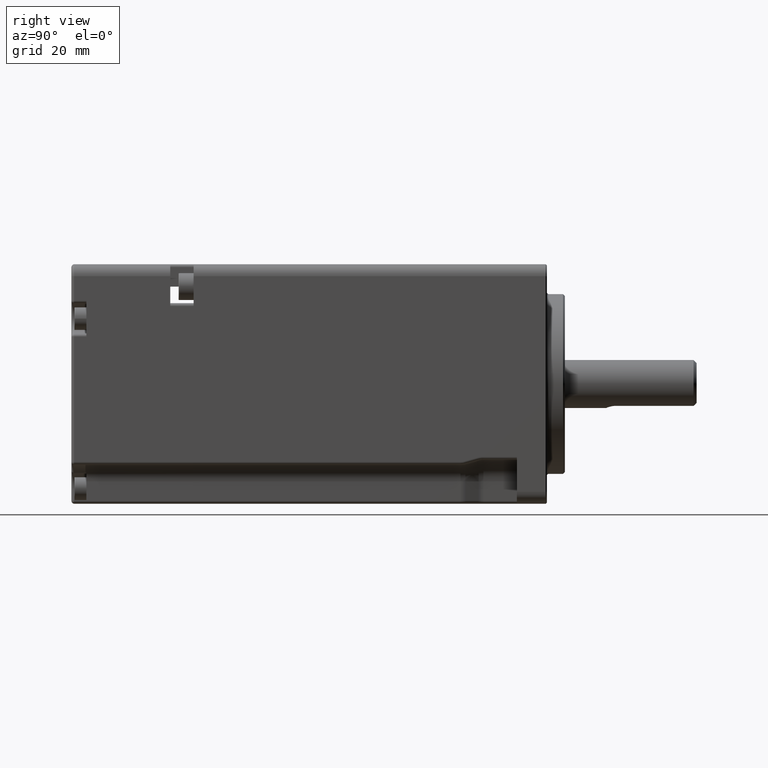
[diagram: clean part render]
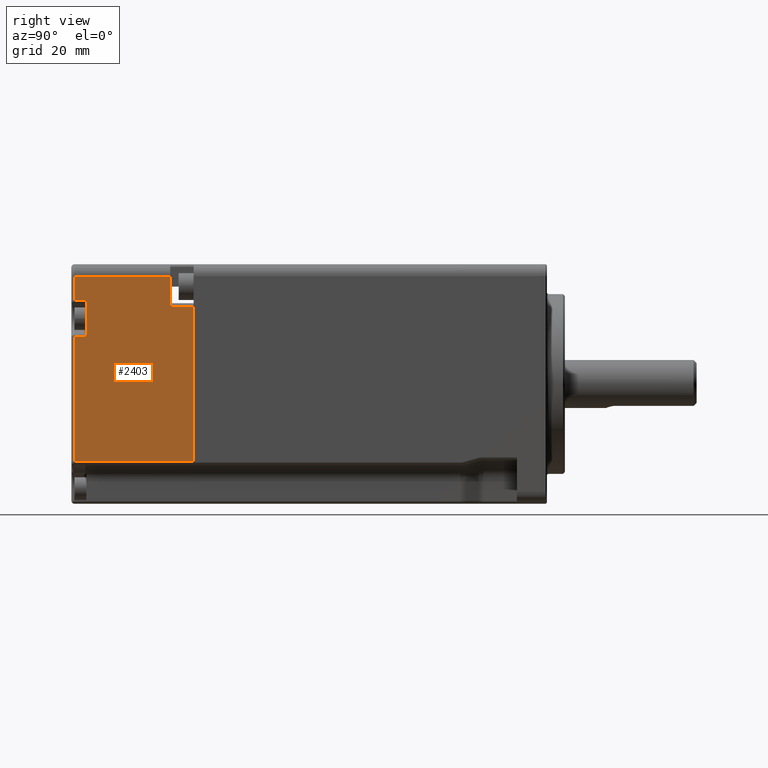
[diagram: same view with one face highlighted and labeled with its STEP entity id]
A machine part, right view. The second image highlights one B-rep face of the part: STEP entity #2403.
In plain terms, the highlighted planar face has unit normal (-1, 0, 0).
Its self-contained STEP definition (entity closure, byte-faithful):
#77 = CARTESIAN_POINT ( 'NONE',  ( 20.00000000000000000, -7.899999999999990585, 13.00345596729055941 ) ) ;
#172 = EDGE_CURVE ( 'NONE', #21234, #11008, #14090, .T. ) ;
#286 = CARTESIAN_POINT ( 'NONE',  ( 20.00000000000000000, -23.89999999999998792, 7.916336843203922946 ) ) ;
#691 = CARTESIAN_POINT ( 'NONE',  ( 20.00000000000000000, -3.999999999999989786, 13.00345596729055941 ) ) ;
#2097 = EDGE_CURVE ( 'NONE', #7168, #10479, #6922, .T. ) ;
#2346 = CARTESIAN_POINT ( 'NONE',  ( 20.00000000000000000, -4.499999999999990230, -13.00345596729059672 ) ) ;
#2364 = DIRECTION ( 'NONE',  ( -1.110223024625156294E-16, -2.092431894514492648E-18, -1.000000000000000000 ) ) ;
#2403 = ADVANCED_FACE ( 'NONE', ( #8553 ), #16298, .F. ) ;
#2835 = CARTESIAN_POINT ( 'NONE',  ( 20.00000000000000355, -7.899999999999990585, 20.00000000000000355 ) ) ;
#2880 = CARTESIAN_POINT ( 'NONE',  ( 20.00000000000000000, -4.499999999999990230, 13.50000000000000711 ) ) ;
#3043 = DIRECTION ( 'NONE',  ( -6.123233995736767268E-17, -1.000000000000000000, 2.092431894514851256E-18 ) ) ;
#3256 = AXIS2_PLACEMENT_3D ( 'NONE', #2880, #5085, #4821 ) ;
#3624 = CARTESIAN_POINT ( 'NONE',  ( 20.00000000000000000, -23.89999999999998792, -13.00345596729059672 ) ) ;
#3868 = CARTESIAN_POINT ( 'NONE',  ( 20.00000000000000000, -3.999999999999989786, -13.00345596729059672 ) ) ;
#4079 = CARTESIAN_POINT ( 'NONE',  ( 20.00000000000000355, -23.89999999999998792, 18.00000000000000711 ) ) ;
#4640 = VECTOR ( 'NONE', #3043, 1000.000000000000000 ) ;
#4821 = DIRECTION ( 'NONE',  ( 1.110223024625156294E-16, 2.092431894514492648E-18, 1.000000000000000000 ) ) ;
#4942 = VECTOR ( 'NONE', #20678, 1000.000000000000000 ) ;
#5085 = DIRECTION ( 'NONE',  ( -1.000000000000000000, 6.123233995737319471E-17, 1.110223024625156294E-16 ) ) ;
#5510 = VECTOR ( 'NONE', #18234, 1000.000000000000000 ) ;
#5576 = EDGE_CURVE ( 'NONE', #23355, #17867, #16649, .T. ) ;
#6265 = LINE ( 'NONE', #22018, #5510 ) ;
#6911 = ORIENTED_EDGE ( 'NONE', *, *, #2097, .T. ) ;
#6922 = LINE ( 'NONE', #18781, #18445 ) ;
#7168 = VERTEX_POINT ( 'NONE', #4079 ) ;
#7416 = ORIENTED_EDGE ( 'NONE', *, *, #14837, .T. ) ;
#7654 = ORIENTED_EDGE ( 'NONE', *, *, #15080, .T. ) ;
#7753 = VECTOR ( 'NONE', #22690, 1000.000000000000000 ) ;
#7799 = DIRECTION ( 'NONE',  ( -1.110223024625156294E-16, -2.092431894514492648E-18, -1.000000000000000000 ) ) ;
#8553 = FACE_OUTER_BOUND ( 'NONE', #22311, .T. ) ;
#8692 = EDGE_CURVE ( 'NONE', #19789, #11008, #24233, .T. ) ;
#9240 = CARTESIAN_POINT ( 'NONE',  ( 20.00000000000000000, -4.499999999999990230, 7.916336843203922946 ) ) ;
#10118 = VECTOR ( 'NONE', #2364, 1000.000000000000000 ) ;
#10382 = ORIENTED_EDGE ( 'NONE', *, *, #5576, .F. ) ;
#10479 = VERTEX_POINT ( 'NONE', #18878 ) ;
#10622 = LINE ( 'NONE', #20056, #19720 ) ;
#11008 = VERTEX_POINT ( 'NONE', #3868 ) ;
#11341 = CARTESIAN_POINT ( 'NONE',  ( 20.00000000000000355, -7.899999999999990585, 18.00000000000000711 ) ) ;
#11683 = CARTESIAN_POINT ( 'NONE',  ( 20.00000000000000000, -21.89999999999998792, 13.91633684320398956 ) ) ;
#11804 = VECTOR ( 'NONE', #12155, 1000.000000000000000 ) ;
#12088 = ORIENTED_EDGE ( 'NONE', *, *, #17874, .T. ) ;
#12155 = DIRECTION ( 'NONE',  ( 6.123233995736767268E-17, 1.000000000000000000, -2.092431894514851256E-18 ) ) ;
#12586 = DIRECTION ( 'NONE',  ( -1.110223024625156294E-16, -2.092431894514492648E-18, -1.000000000000000000 ) ) ;
#13987 = LINE ( 'NONE', #2835, #10118 ) ;
#14090 = LINE ( 'NONE', #2346, #11804 ) ;
#14438 = VERTEX_POINT ( 'NONE', #11341 ) ;
#14727 = CARTESIAN_POINT ( 'NONE',  ( 20.00000000000000000, -21.89999999999998792, 8.416336843203923834 ) ) ;
#14837 = EDGE_CURVE ( 'NONE', #14438, #7168, #21132, .T. ) ;
#14853 = ORIENTED_EDGE ( 'NONE', *, *, #17983, .F. ) ;
#15080 = EDGE_CURVE ( 'NONE', #19789, #20598, #10622, .T. ) ;
#15415 = LINE ( 'NONE', #21241, #24147 ) ;
#15768 = VECTOR ( 'NONE', #18636, 1000.000000000000000 ) ;
#16131 = VERTEX_POINT ( 'NONE', #286 ) ;
#16298 = PLANE ( 'NONE',  #3256 ) ;
#16649 = LINE ( 'NONE', #14727, #4942 ) ;
#17867 = VERTEX_POINT ( 'NONE', #11683 ) ;
#17874 = EDGE_CURVE ( 'NONE', #16131, #21234, #15415, .T. ) ;
#17983 = EDGE_CURVE ( 'NONE', #14438, #20598, #13987, .T. ) ;
#18234 = DIRECTION ( 'NONE',  ( 6.123233995736767268E-17, 1.000000000000000000, -2.092431894514851256E-18 ) ) ;
#18445 = VECTOR ( 'NONE', #12586, 1000.000000000000000 ) ;
#18490 = DIRECTION ( 'NONE',  ( -6.123233995736767268E-17, -1.000000000000000000, 2.092431894514851256E-18 ) ) ;
#18636 = DIRECTION ( 'NONE',  ( -1.110223024625156294E-16, -2.092431894514492648E-18, -1.000000000000000000 ) ) ;
#18781 = CARTESIAN_POINT ( 'NONE',  ( 20.00000000000000000, -23.89999999999998792, 13.50000000000000711 ) ) ;
#18878 = CARTESIAN_POINT ( 'NONE',  ( 20.00000000000000000, -23.89999999999998792, 13.91633684320398956 ) ) ;
#19133 = ORIENTED_EDGE ( 'NONE', *, *, #172, .T. ) ;
#19174 = CARTESIAN_POINT ( 'NONE',  ( 20.00000000000000355, -24.39999999999998792, 18.00000000000000711 ) ) ;
#19720 = VECTOR ( 'NONE', #18490, 1000.000000000000000 ) ;
#19789 = VERTEX_POINT ( 'NONE', #23668 ) ;
#19794 = ORIENTED_EDGE ( 'NONE', *, *, #22347, .T. ) ;
#19935 = CARTESIAN_POINT ( 'NONE',  ( 20.00000000000000000, -21.89999999999998792, 7.916336843203922946 ) ) ;
#20056 = CARTESIAN_POINT ( 'NONE',  ( 20.00000000000000000, -4.499999999999990230, 13.00345596729055941 ) ) ;
#20598 = VERTEX_POINT ( 'NONE', #77 ) ;
#20678 = DIRECTION ( 'NONE',  ( 1.110223024625156294E-16, 2.092431894514492648E-18, 1.000000000000000000 ) ) ;
#21010 = LINE ( 'NONE', #9240, #4640 ) ;
#21132 = LINE ( 'NONE', #19174, #7753 ) ;
#21234 = VERTEX_POINT ( 'NONE', #3624 ) ;
#21241 = CARTESIAN_POINT ( 'NONE',  ( 20.00000000000000000, -23.89999999999998792, 13.50000000000000711 ) ) ;
#21864 = ORIENTED_EDGE ( 'NONE', *, *, #22095, .T. ) ;
#22018 = CARTESIAN_POINT ( 'NONE',  ( 20.00000000000000000, -21.89999999999998792, 13.91633684320398956 ) ) ;
#22095 = EDGE_CURVE ( 'NONE', #23355, #16131, #21010, .T. ) ;
#22311 = EDGE_LOOP ( 'NONE', ( #19133, #23464, #7654, #14853, #7416, #6911, #19794, #10382, #21864, #12088 ) ) ;
#22347 = EDGE_CURVE ( 'NONE', #10479, #17867, #6265, .T. ) ;
#22690 = DIRECTION ( 'NONE',  ( -6.123233995736767268E-17, -1.000000000000000000, 2.092431894514851256E-18 ) ) ;
#23355 = VERTEX_POINT ( 'NONE', #19935 ) ;
#23464 = ORIENTED_EDGE ( 'NONE', *, *, #8692, .F. ) ;
#23668 = CARTESIAN_POINT ( 'NONE',  ( 20.00000000000000000, -3.999999999999989786, 13.00345596729055941 ) ) ;
#24147 = VECTOR ( 'NONE', #7799, 1000.000000000000000 ) ;
#24233 = LINE ( 'NONE', #691, #15768 ) ;